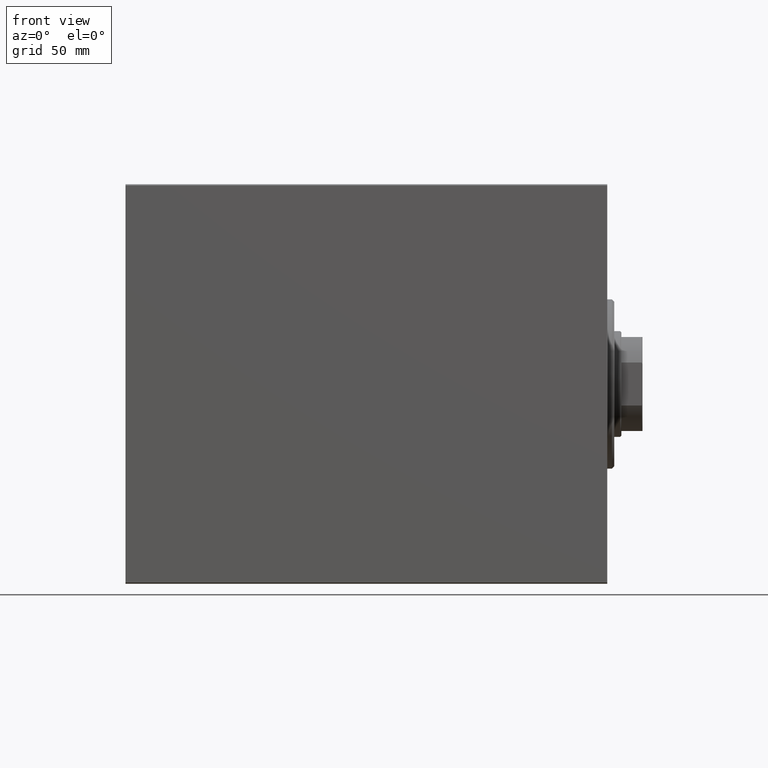
[diagram: clean part render]
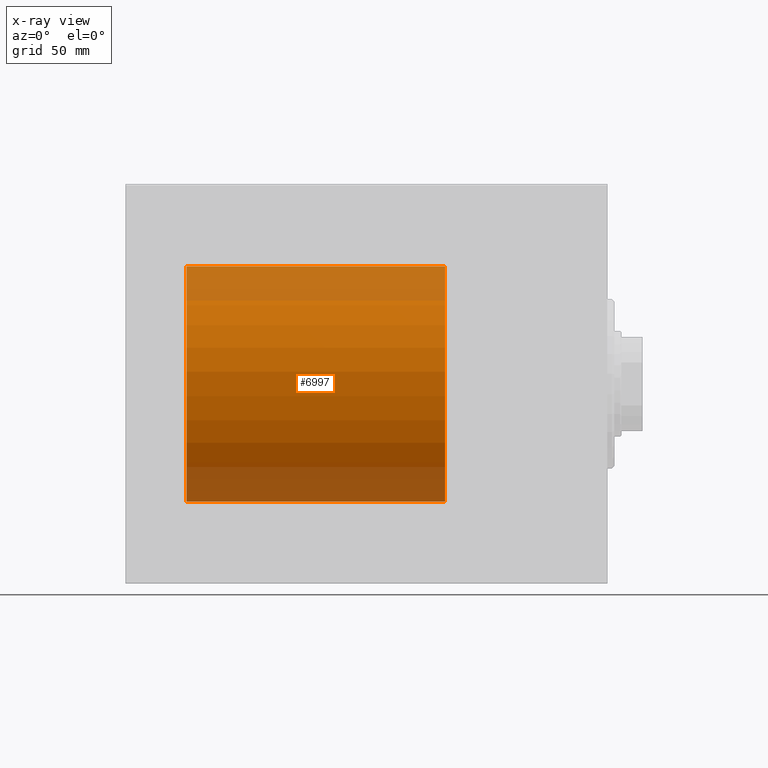
[diagram: x-ray — body ghosted, one internal face saturated and labeled with its STEP entity id]
A machine part, front view, then the same camera in x-ray: the body is ghosted and one INTERNAL B-rep face — a face not visible from any outside direction — is saturated and labeled: STEP entity #6997.
In plain terms, the highlighted cylindrical surface (partial cylindrical patch) has radius 50 mm, axis along (1, 0, 0).
Its self-contained STEP definition (entity closure, byte-faithful):
#705 = VERTEX_POINT ( 'NONE', #6214 ) ;
#4376 = DIRECTION ( 'NONE',  ( 0.000000000000000000, 0.000000000000000000, 1.000000000000000000 ) ) ;
#4617 = CYLINDRICAL_SURFACE ( 'NONE', #7084, 50.00000000000000000 ) ;
#5366 = ORIENTED_EDGE ( 'NONE', *, *, #38994, .T. ) ;
#6214 = CARTESIAN_POINT ( 'NONE',  ( 69.00000000000000000, 6.123233995736764507E-15, -50.00000000000000000 ) ) ;
#6340 = CIRCLE ( 'NONE', #19368, 50.00000000000000000 ) ;
#6997 = ADVANCED_FACE ( 'NONE', ( #32420 ), #4617, .F. ) ;
#7084 = AXIS2_PLACEMENT_3D ( 'NONE', #24536, #15268, #42609 ) ;
#11605 = CARTESIAN_POINT ( 'NONE',  ( 69.00000000000000000, 0.000000000000000000, 50.00000000000000000 ) ) ;
#12610 = LINE ( 'NONE', #26404, #22424 ) ;
#14294 = ORIENTED_EDGE ( 'NONE', *, *, #18251, .F. ) ;
#15226 = VECTOR ( 'NONE', #25702, 1000.000000000000000 ) ;
#15268 = DIRECTION ( 'NONE',  ( -1.000000000000000000, -0.000000000000000000, -0.000000000000000000 ) ) ;
#16783 = ORIENTED_EDGE ( 'NONE', *, *, #40012, .F. ) ;
#17881 = EDGE_CURVE ( 'NONE', #18409, #705, #12610, .T. ) ;
#18251 = EDGE_CURVE ( 'NONE', #41900, #23237, #34170, .T. ) ;
#18368 = CARTESIAN_POINT ( 'NONE',  ( 179.0000000000000000, 6.123233995736764507E-15, -50.00000000000000000 ) ) ;
#18409 = VERTEX_POINT ( 'NONE', #18368 ) ;
#19368 = AXIS2_PLACEMENT_3D ( 'NONE', #21130, #34903, #4376 ) ;
#19923 = DIRECTION ( 'NONE',  ( -1.000000000000000000, 0.000000000000000000, 0.000000000000000000 ) ) ;
#21130 = CARTESIAN_POINT ( 'NONE',  ( 69.00000000000000000, 0.000000000000000000, 0.000000000000000000 ) ) ;
#22424 = VECTOR ( 'NONE', #39755, 1000.000000000000000 ) ;
#22894 = ORIENTED_EDGE ( 'NONE', *, *, #17881, .T. ) ;
#23237 = VERTEX_POINT ( 'NONE', #11605 ) ;
#23270 = EDGE_LOOP ( 'NONE', ( #16783, #22894, #5366, #14294 ) ) ;
#23303 = DIRECTION ( 'NONE',  ( 0.000000000000000000, 0.000000000000000000, 1.000000000000000000 ) ) ;
#23944 = CIRCLE ( 'NONE', #25408, 50.00000000000000000 ) ;
#24536 = CARTESIAN_POINT ( 'NONE',  ( 179.0000000000000000, 0.000000000000000000, 0.000000000000000000 ) ) ;
#25408 = AXIS2_PLACEMENT_3D ( 'NONE', #37296, #19923, #23303 ) ;
#25702 = DIRECTION ( 'NONE',  ( -1.000000000000000000, -0.000000000000000000, -0.000000000000000000 ) ) ;
#26404 = CARTESIAN_POINT ( 'NONE',  ( 179.0000000000000000, 6.123233995736764507E-15, -50.00000000000000000 ) ) ;
#32420 = FACE_OUTER_BOUND ( 'NONE', #23270, .T. ) ;
#34170 = LINE ( 'NONE', #43086, #15226 ) ;
#34903 = DIRECTION ( 'NONE',  ( -1.000000000000000000, 0.000000000000000000, 0.000000000000000000 ) ) ;
#36138 = CARTESIAN_POINT ( 'NONE',  ( 179.0000000000000000, 0.000000000000000000, 50.00000000000000000 ) ) ;
#37296 = CARTESIAN_POINT ( 'NONE',  ( 179.0000000000000000, 0.000000000000000000, 0.000000000000000000 ) ) ;
#38994 = EDGE_CURVE ( 'NONE', #705, #23237, #6340, .T. ) ;
#39755 = DIRECTION ( 'NONE',  ( -1.000000000000000000, -0.000000000000000000, -0.000000000000000000 ) ) ;
#40012 = EDGE_CURVE ( 'NONE', #18409, #41900, #23944, .T. ) ;
#41900 = VERTEX_POINT ( 'NONE', #36138 ) ;
#42609 = DIRECTION ( 'NONE',  ( 0.000000000000000000, 0.000000000000000000, 1.000000000000000000 ) ) ;
#43086 = CARTESIAN_POINT ( 'NONE',  ( 179.0000000000000000, 0.000000000000000000, 50.00000000000000000 ) ) ;